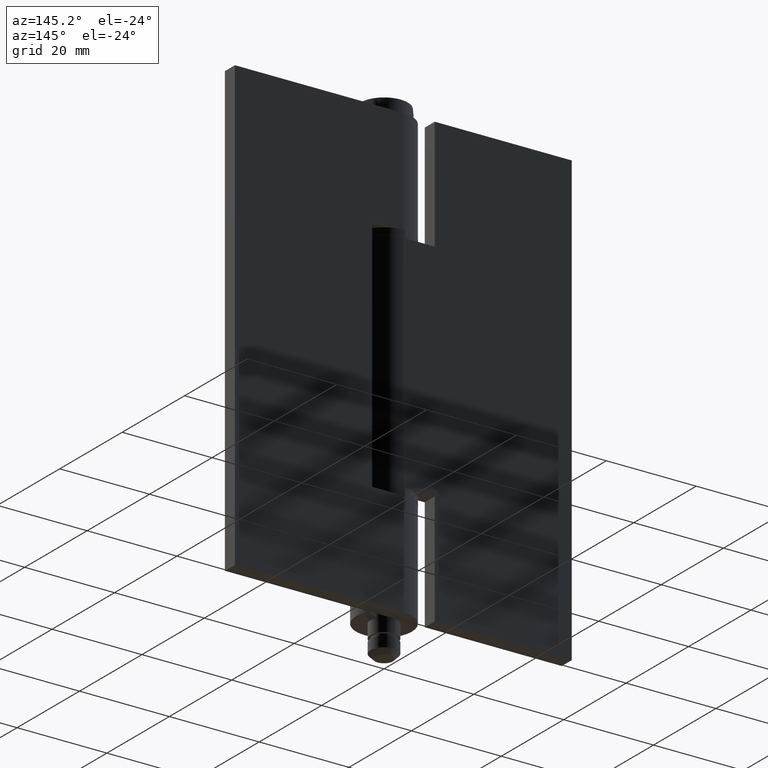
[diagram: clean part render]
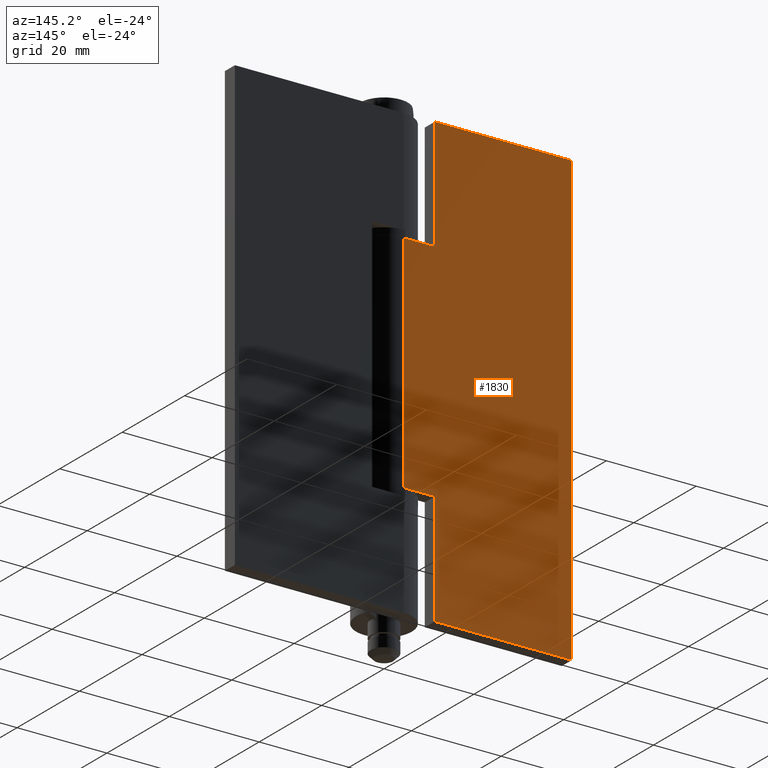
[diagram: same view with one face highlighted and labeled with its STEP entity id]
A machine part, auxiliary view. The second image highlights one B-rep face of the part: STEP entity #1830.
In plain terms, the highlighted face is a freeform B-spline surface patch.
Its self-contained STEP definition (entity closure, byte-faithful):
#1448=CARTESIAN_POINT('',(-7.0,6.200001000000000,25.0));
#1449=VERTEX_POINT('',#1448);
#1455=CARTESIAN_POINT('',(0.0,6.200001000000000,25.0));
#1456=VERTEX_POINT('',#1455);
#1457=CARTESIAN_POINT('',(-7.0,6.200001000000000,25.0));
#1458=CARTESIAN_POINT('',(0.0,6.200001000000000,25.0));
#1459=QUASI_UNIFORM_CURVE('',1,(#1457,#1458),.UNSPECIFIED.,.F.,.U.);
#1460=EDGE_CURVE('',#1449,#1456,#1459,.T.);
#1526=CARTESIAN_POINT('',(-7.0,6.200001000000000,0.0));
#1527=VERTEX_POINT('',#1526);
#1533=CARTESIAN_POINT('',(-7.0,6.200001000000000,0.0));
#1534=CARTESIAN_POINT('',(-7.0,6.200001000000000,25.0));
#1535=QUASI_UNIFORM_CURVE('',1,(#1533,#1534),.UNSPECIFIED.,.F.,.U.);
#1536=EDGE_CURVE('',#1527,#1449,#1535,.T.);
#1552=CARTESIAN_POINT('',(-7.0,6.200001000000000,74.999992999999805));
#1553=VERTEX_POINT('',#1552);
#1554=CARTESIAN_POINT('',(0.0,6.200001000000000,74.999992999999805));
#1555=VERTEX_POINT('',#1554);
#1556=CARTESIAN_POINT('',(-7.0,6.200001000000000,74.999992999999805));
#1557=CARTESIAN_POINT('',(0.0,6.200001000000000,74.999992999999805));
#1558=QUASI_UNIFORM_CURVE('',1,(#1556,#1557),.UNSPECIFIED.,.F.,.U.);
#1559=EDGE_CURVE('',#1553,#1555,#1558,.T.);
#1631=CARTESIAN_POINT('',(-7.0,6.200001000000000,99.999992999999805));
#1632=VERTEX_POINT('',#1631);
#1633=CARTESIAN_POINT('',(-7.0,6.200001000000000,99.999992999999805));
#1634=CARTESIAN_POINT('',(-7.0,6.200001000000000,74.999992999999805));
#1635=QUASI_UNIFORM_CURVE('',1,(#1633,#1634),.UNSPECIFIED.,.F.,.U.);
#1636=EDGE_CURVE('',#1632,#1553,#1635,.T.);
#1660=CARTESIAN_POINT('',(-37.500008000000001,6.200001000000000,0.0));
#1661=VERTEX_POINT('',#1660);
#1674=CARTESIAN_POINT('',(-37.500008000000001,6.200001000000000,99.999992999999805));
#1675=VERTEX_POINT('',#1674);
#1681=CARTESIAN_POINT('',(-37.500008000000001,6.200001000000000,99.999992999999805));
#1682=CARTESIAN_POINT('',(-37.500008000000001,6.200001000000000,0.0));
#1683=QUASI_UNIFORM_CURVE('',1,(#1681,#1682),.UNSPECIFIED.,.F.,.U.);
#1684=EDGE_CURVE('',#1675,#1661,#1683,.T.);
#1695=CARTESIAN_POINT('',(-37.500008000000001,6.200001000000000,99.999992999999805));
#1696=CARTESIAN_POINT('',(-7.0,6.200001000000000,99.999992999999805));
#1697=QUASI_UNIFORM_CURVE('',1,(#1695,#1696),.UNSPECIFIED.,.F.,.U.);
#1698=EDGE_CURVE('',#1675,#1632,#1697,.T.);
#1714=CARTESIAN_POINT('',(-37.500008000000001,6.200001000000000,0.0));
#1715=CARTESIAN_POINT('',(-7.0,6.200001000000000,0.0));
#1716=QUASI_UNIFORM_CURVE('',1,(#1714,#1715),.UNSPECIFIED.,.F.,.U.);
#1717=EDGE_CURVE('',#1661,#1527,#1716,.T.);
#1805=CARTESIAN_POINT('',(0.0,6.200001000000000,74.999992999999805));
#1806=CARTESIAN_POINT('',(0.0,6.200001000000000,25.0));
#1807=QUASI_UNIFORM_CURVE('',1,(#1805,#1806),.UNSPECIFIED.,.F.,.U.);
#1808=EDGE_CURVE('',#1555,#1456,#1807,.T.);
#1815=CARTESIAN_POINT('',(-39.373132974894467,6.200001000000000,-4.994999456530599));
#1816=CARTESIAN_POINT('',(-39.373132974894467,6.200001000000000,104.994995138739300));
#1817=CARTESIAN_POINT('',(1.873126315999253,6.200001000000000,-4.994999456530599));
#1818=CARTESIAN_POINT('',(1.873126315999253,6.200001000000000,104.994995138739300));
#1819=B_SPLINE_SURFACE_WITH_KNOTS('',1,1,((#1815,#1817),(#1816,#1818)),.UNSPECIFIED.,.F.,.F.,.U.,(2,2),(2,2),(0.0,109.989994595269910),(0.0,41.246259290893718),.UNSPECIFIED.);
#1820=ORIENTED_EDGE('',*,*,#1460,.F.);
#1821=ORIENTED_EDGE('',*,*,#1536,.F.);
#1822=ORIENTED_EDGE('',*,*,#1717,.F.);
#1823=ORIENTED_EDGE('',*,*,#1684,.F.);
#1824=ORIENTED_EDGE('',*,*,#1698,.T.);
#1825=ORIENTED_EDGE('',*,*,#1636,.T.);
#1826=ORIENTED_EDGE('',*,*,#1559,.T.);
#1827=ORIENTED_EDGE('',*,*,#1808,.T.);
#1828=EDGE_LOOP('',(#1820,#1821,#1822,#1823,#1824,#1825,#1826,#1827));
#1829=FACE_OUTER_BOUND('',#1828,.T.);
#1830=ADVANCED_FACE('',(#1829),#1819,.T.);